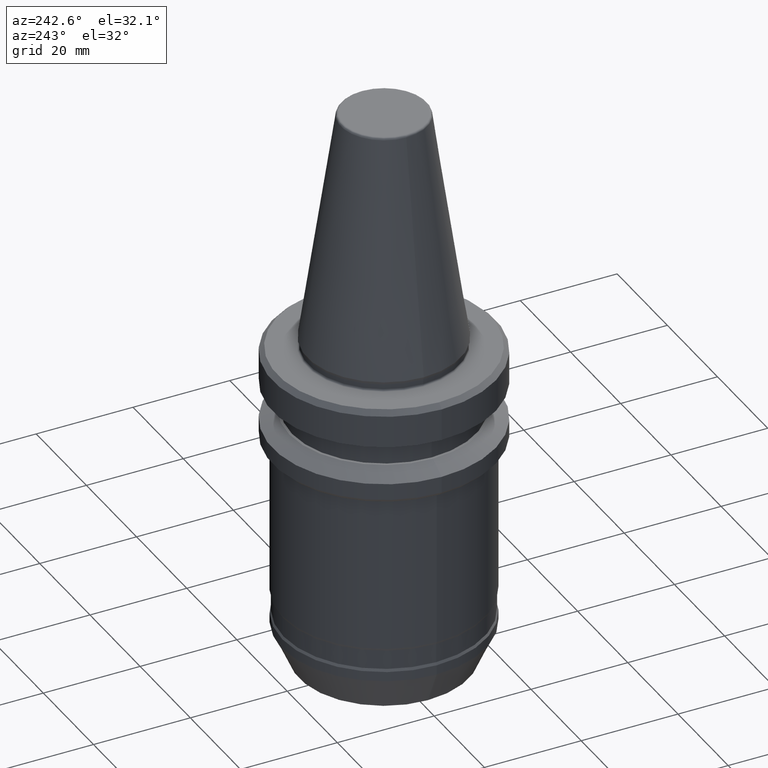
[diagram: clean part render]
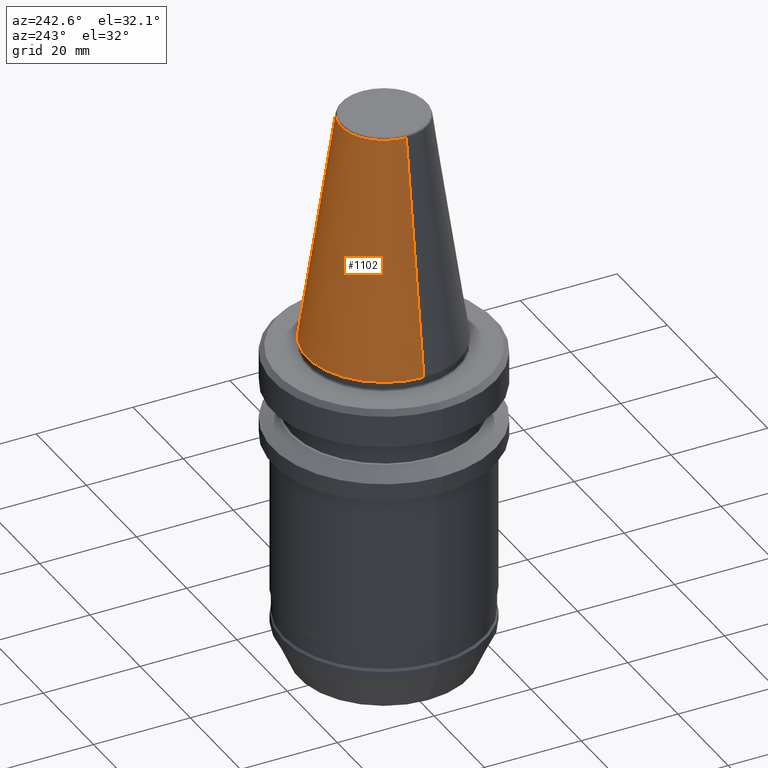
[diagram: same view with one face highlighted and labeled with its STEP entity id]
A machine part, auxiliary view. The second image highlights one B-rep face of the part: STEP entity #1102.
In plain terms, the highlighted conical surface has half-angle 8.297 deg.
Its self-contained STEP definition (entity closure, byte-faithful):
#2 = DIRECTION ( 'NONE',  ( 0.0000000000000000000, 0.0000000000000000000, -1.000000000000000000 ) ) ;
#12 = DIRECTION ( 'NONE',  ( -0.1443082268835103600, 0.0000000000000000000, -0.9895327865481452500 ) ) ;
#110 = VERTEX_POINT ( 'NONE', #442 ) ;
#126 = ORIENTED_EDGE ( 'NONE', *, *, #210, .T. ) ;
#210 = EDGE_CURVE ( 'NONE', #496, #110, #887, .T. ) ;
#215 = CARTESIAN_POINT ( 'NONE',  ( 0.0000000000000000000, 0.0000000000000000000, 0.0000000000000000000 ) ) ;
#250 = VECTOR ( 'NONE', #402, 1000.000000000000200 ) ;
#307 = DIRECTION ( 'NONE',  ( 1.000000000000000000, 0.0000000000000000000, 0.0000000000000000000 ) ) ;
#309 = EDGE_CURVE ( 'NONE', #496, #1081, #466, .T. ) ;
#322 = CARTESIAN_POINT ( 'NONE',  ( 0.0000000000000000000, 0.0000000000000000000, 47.97215411344135600 ) ) ;
#377 = CARTESIAN_POINT ( 'NONE',  ( 15.87500000000030600, 1.944126793646460700E-015, 0.0000000000000000000 ) ) ;
#394 = AXIS2_PLACEMENT_3D ( 'NONE', #1113, #2, #483 ) ;
#402 = DIRECTION ( 'NONE',  ( 0.1443082268835103600, 1.767266081435209900E-017, -0.9895327865481452500 ) ) ;
#406 = CONICAL_SURFACE ( 'NONE', #394, 15.87500000000030600, 0.1448138461595626400 ) ;
#416 = DIRECTION ( 'NONE',  ( 1.000000000000000000, 0.0000000000000000000, 0.0000000000000000000 ) ) ;
#442 = CARTESIAN_POINT ( 'NONE',  ( 15.87500000000030600, 0.0000000000000000000, 0.0000000000000000000 ) ) ;
#443 = EDGE_CURVE ( 'NONE', #110, #907, #955, .T. ) ;
#466 = CIRCLE ( 'NONE', #1130, 8.878994820583852000 ) ;
#467 = EDGE_CURVE ( 'NONE', #1081, #907, #837, .T. ) ;
#483 = DIRECTION ( 'NONE',  ( -1.000000000000000000, 0.0000000000000000000, 0.0000000000000000000 ) ) ;
#496 = VERTEX_POINT ( 'NONE', #1082 ) ;
#512 = ORIENTED_EDGE ( 'NONE', *, *, #467, .F. ) ;
#717 = CARTESIAN_POINT ( 'NONE',  ( -15.87500000000030600, 1.944126793646460700E-015, 0.0000000000000000000 ) ) ;
#779 = FACE_OUTER_BOUND ( 'NONE', #982, .T. ) ;
#831 = CARTESIAN_POINT ( 'NONE',  ( -8.878994820583852000, 0.0000000000000000000, 47.97215411344135600 ) ) ;
#837 = LINE ( 'NONE', #1033, #1197 ) ;
#851 = DIRECTION ( 'NONE',  ( -0.0000000000000000000, -0.0000000000000000000, 1.000000000000000000 ) ) ;
#867 = ORIENTED_EDGE ( 'NONE', *, *, #309, .F. ) ;
#887 = LINE ( 'NONE', #377, #250 ) ;
#907 = VERTEX_POINT ( 'NONE', #717 ) ;
#955 = CIRCLE ( 'NONE', #1133, 15.87500000000030600 ) ;
#965 = DIRECTION ( 'NONE',  ( -0.0000000000000000000, -0.0000000000000000000, 1.000000000000000000 ) ) ;
#982 = EDGE_LOOP ( 'NONE', ( #867, #126, #1083, #512 ) ) ;
#1033 = CARTESIAN_POINT ( 'NONE',  ( -15.87500000000030600, 0.0000000000000000000, 0.0000000000000000000 ) ) ;
#1081 = VERTEX_POINT ( 'NONE', #831 ) ;
#1082 = CARTESIAN_POINT ( 'NONE',  ( 8.878994820583852000, 1.515745026156927400E-015, 47.97215411344135600 ) ) ;
#1083 = ORIENTED_EDGE ( 'NONE', *, *, #443, .T. ) ;
#1102 = ADVANCED_FACE ( 'NONE', ( #779 ), #406, .T. ) ;
#1113 = CARTESIAN_POINT ( 'NONE',  ( 0.0000000000000000000, 0.0000000000000000000, 0.0000000000000000000 ) ) ;
#1130 = AXIS2_PLACEMENT_3D ( 'NONE', #322, #965, #416 ) ;
#1133 = AXIS2_PLACEMENT_3D ( 'NONE', #215, #851, #307 ) ;
#1197 = VECTOR ( 'NONE', #12, 1000.000000000000200 ) ;